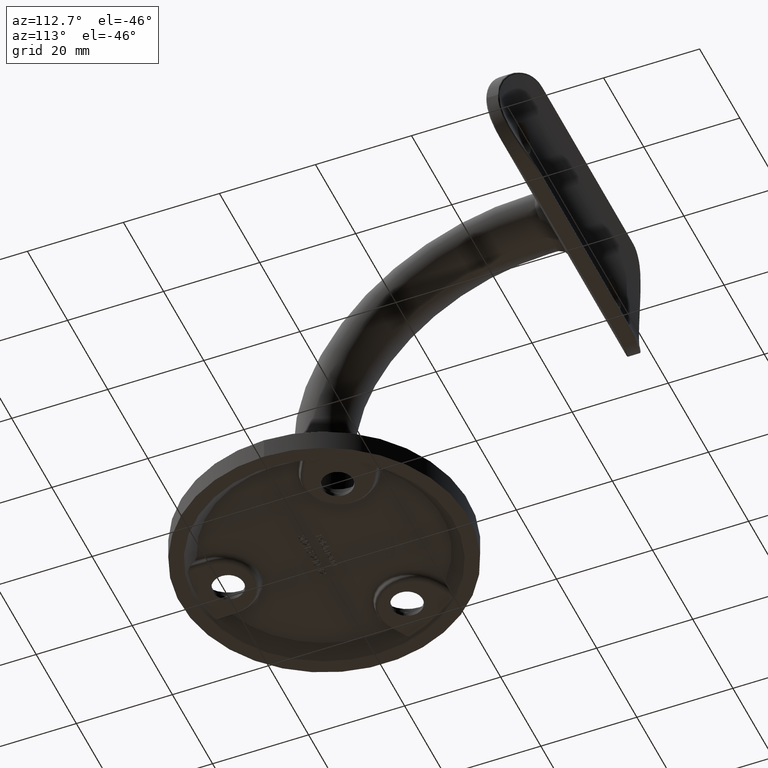
[diagram: clean part render]
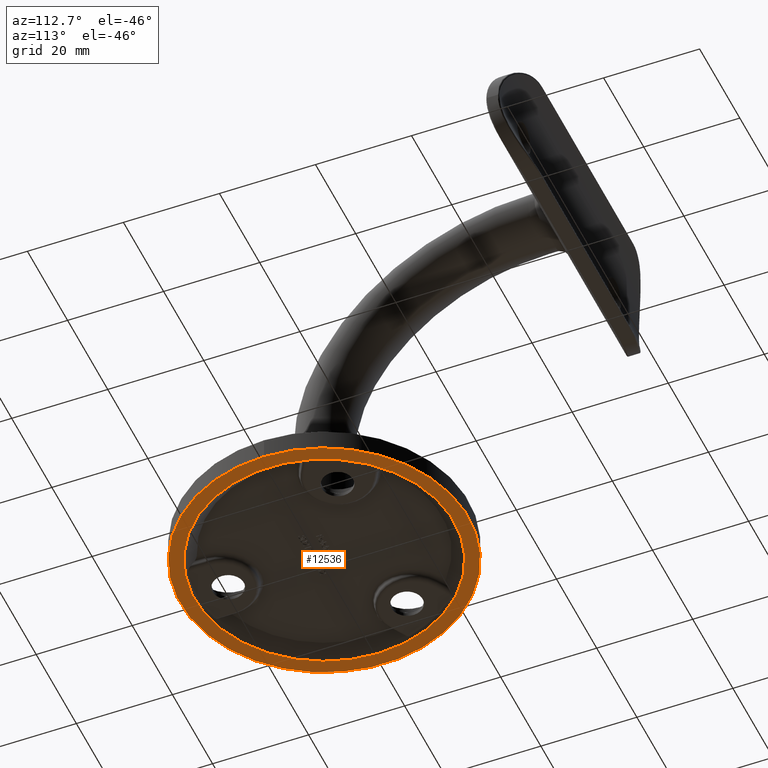
[diagram: same view with one face highlighted and labeled with its STEP entity id]
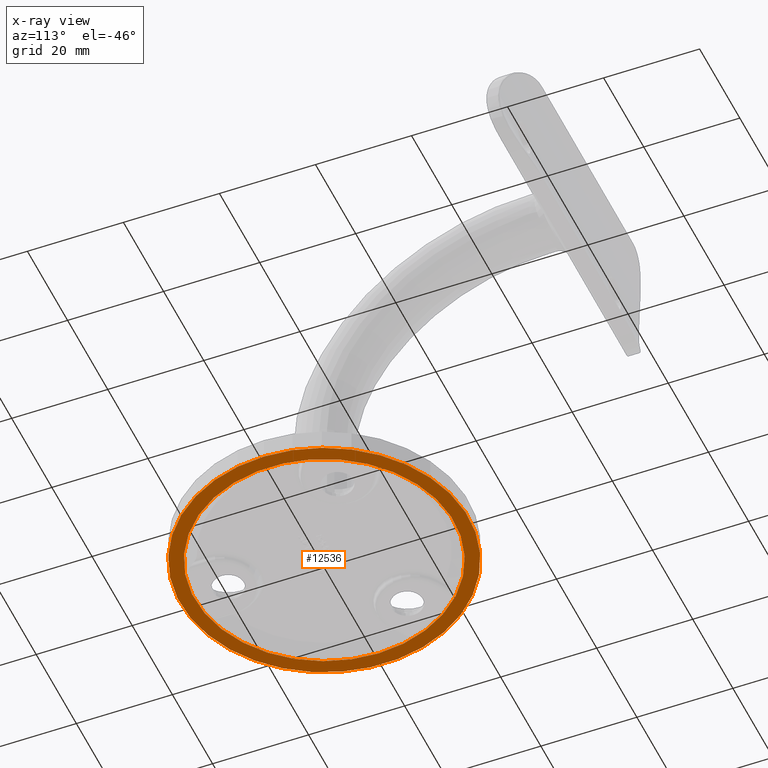
[diagram: x-ray of the same camera — body ghosted, the highlighted face saturated]
A machine part, auxiliary view. The second image highlights one B-rep face of the part: STEP entity #12536.
The next image is the same camera in x-ray: the body ghosted, the highlighted face saturated — about 0% of this face is hidden behind the body in this view.
In plain terms, the highlighted planar face has unit normal (0, 0, 1).
Its self-contained STEP definition (entity closure, byte-faithful):
#256 = DIRECTION ( 'NONE',  ( 0.000000000000000000, 0.000000000000000000, -1.000000000000000000 ) ) ;
#1512 = AXIS2_PLACEMENT_3D ( 'NONE', #5524, #256, #12224 ) ;
#1610 = DIRECTION ( 'NONE',  ( 0.000000000000000000, 0.000000000000000000, 1.000000000000000000 ) ) ;
#2940 = EDGE_LOOP ( 'NONE', ( #14039 ) ) ;
#3500 = CIRCLE ( 'NONE', #7279, 30.00000000000000000 ) ;
#4248 = CARTESIAN_POINT ( 'NONE',  ( 0.000000000000000000, 0.000000000000000000, 0.000000000000000000 ) ) ;
#4294 = DIRECTION ( 'NONE',  ( 0.000000000000000000, 0.000000000000000000, 1.000000000000000000 ) ) ;
#5152 = VERTEX_POINT ( 'NONE', #9269 ) ;
#5524 = CARTESIAN_POINT ( 'NONE',  ( 0.000000000000000000, 0.000000000000000000, 0.000000000000000000 ) ) ;
#7279 = AXIS2_PLACEMENT_3D ( 'NONE', #16318, #4294, #10728 ) ;
#8286 = PLANE ( 'NONE',  #10555 ) ;
#8789 = FACE_OUTER_BOUND ( 'NONE', #15217, .T. ) ;
#9025 = CARTESIAN_POINT ( 'NONE',  ( -26.99999999999999645, 0.000000000000000000, 0.000000000000000000 ) ) ;
#9269 = CARTESIAN_POINT ( 'NONE',  ( 30.00000000000000000, 0.000000000000000000, 0.000000000000000000 ) ) ;
#10555 = AXIS2_PLACEMENT_3D ( 'NONE', #4248, #1610, #16501 ) ;
#10728 = DIRECTION ( 'NONE',  ( 1.000000000000000000, 0.000000000000000000, 0.000000000000000000 ) ) ;
#12224 = DIRECTION ( 'NONE',  ( -1.000000000000000000, 0.000000000000000000, 0.000000000000000000 ) ) ;
#12412 = FACE_BOUND ( 'NONE', #2940, .T. ) ;
#12536 = ADVANCED_FACE ( 'NONE', ( #8789, #12412 ), #8286, .F. ) ;
#13833 = EDGE_CURVE ( 'NONE', #5152, #5152, #3500, .T. ) ;
#14039 = ORIENTED_EDGE ( 'NONE', *, *, #15385, .F. ) ;
#14609 = VERTEX_POINT ( 'NONE', #9025 ) ;
#14846 = CIRCLE ( 'NONE', #1512, 26.99999999999999645 ) ;
#15217 = EDGE_LOOP ( 'NONE', ( #16969 ) ) ;
#15385 = EDGE_CURVE ( 'NONE', #14609, #14609, #14846, .T. ) ;
#16318 = CARTESIAN_POINT ( 'NONE',  ( 0.000000000000000000, 0.000000000000000000, 0.000000000000000000 ) ) ;
#16501 = DIRECTION ( 'NONE',  ( 1.000000000000000000, 0.000000000000000000, -0.000000000000000000 ) ) ;
#16969 = ORIENTED_EDGE ( 'NONE', *, *, #13833, .F. ) ;